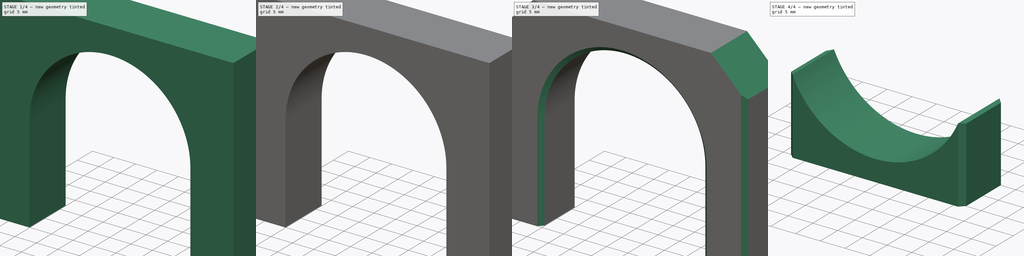
[diagram: build sequence overview — one tinted view per stage of 4, left to right]
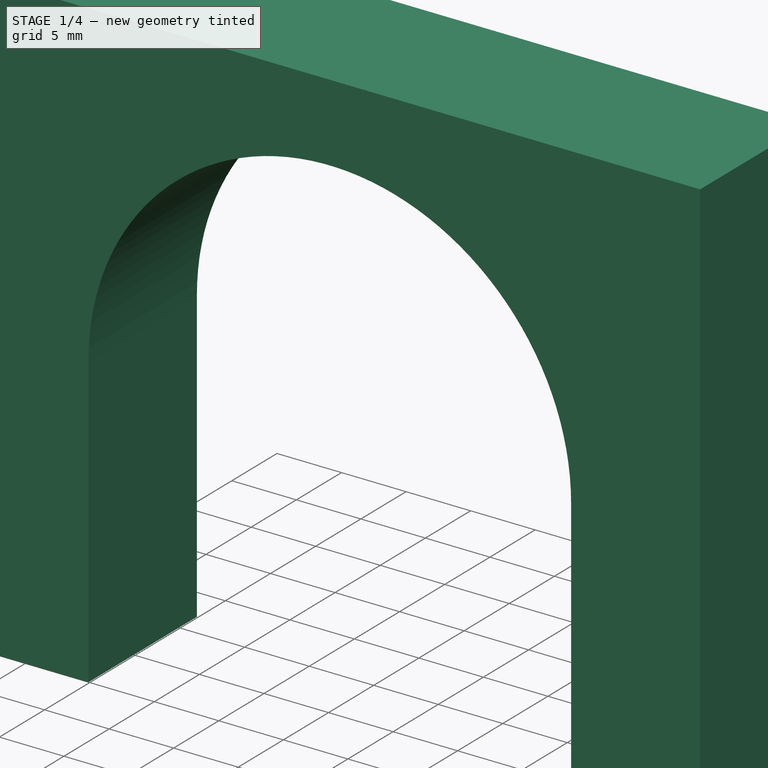
[diagram: stage 1 of 4 — iso view after this stage's code; geometry added in this stage tinted green]
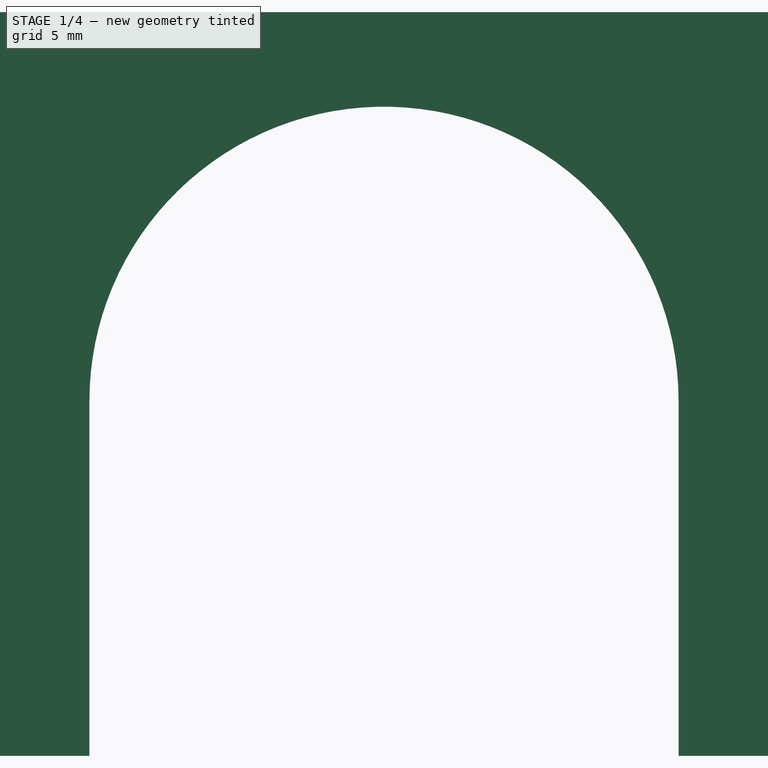
[diagram: stage 1 of 4 — front view after this stage's code; geometry added in this stage tinted green]
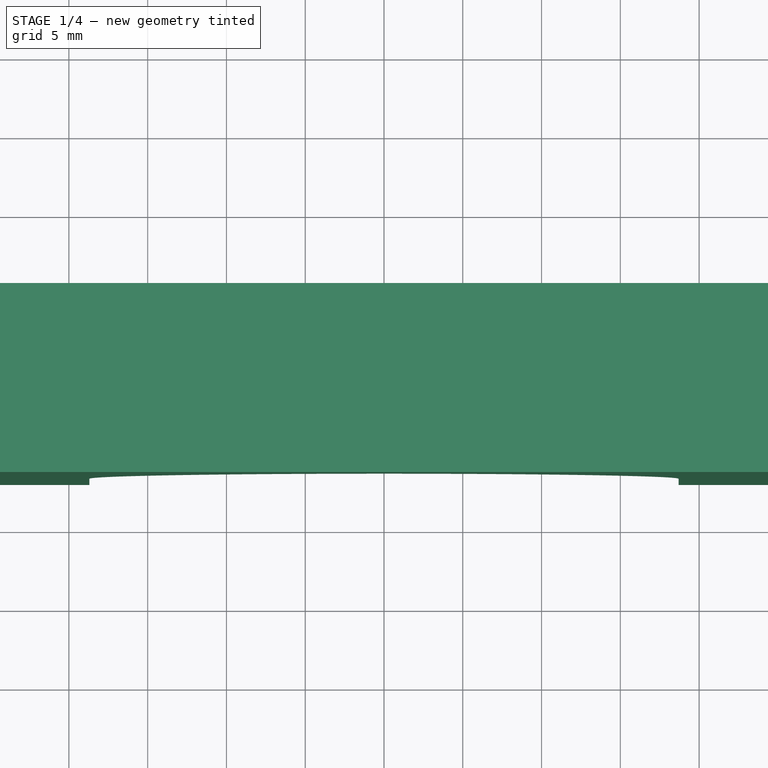
[diagram: stage 1 of 4 — top view after this stage's code; geometry added in this stage tinted green]
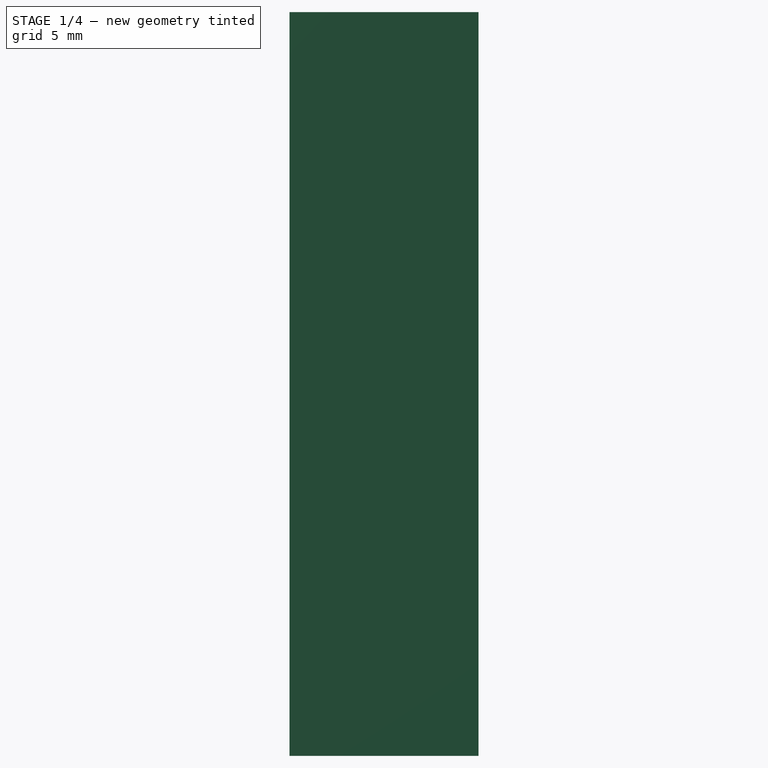
[diagram: stage 1 of 4 — right view after this stage's code; geometry added in this stage tinted green]
FCSTD DOCUMENT  (FreeCAD 0.19R24415 (Git))
Label: KarlssonRobotics_pump_mount
License: All rights reserved
LicenseURL: http://en.wikipedia.org/wiki/All_rights_reserved
objects: PartDesign::Chamfer×6, Sketcher::SketchObject×4, PartDesign::Pad×2, PartDesign::Pocket×2, PartDesign::Mirrored×2, PartDesign::Body×2, PartDesign::ShapeBinder×1
note: 29 computed .brp shape members not serialized (recipe doc carries the construction recipe); baked Part::Feature solids carry a one-line shape summary decoded from their .brp

FEATURE [Sketcher::SketchObject] Sketch
  FullyConstrained = true
  MapMode = 5
  Placement = pos=(0,0,0) rot=(1,0,0;1.5708rad)
  Support = -> [XZ_Plane]
  sketch-geometry (12):
    g0: Circle CenterX=0 CenterY=0 CenterZ=0 NormalX=0 NormalY=0 NormalZ=1 AngleXU=0 Radius=18.5
    g1: ArcOfCircle CenterX=0 CenterY=0 CenterZ=0 NormalX=0 NormalY=0 NormalZ=1 AngleXU=0 Radius=18.7 StartAngle=1e-16 EndAngle=3.14159
    g2: LineSegment StartX=-18.7 StartY=2.846e-13 StartZ=0 EndX=-18.7 EndY=-22.5 EndZ=0
    g3: LineSegment StartX=-18.7 StartY=-22.5 StartZ=0 EndX=-28.7 EndY=-22.5 EndZ=0
    g4: LineSegment StartX=-28.7 StartY=-22.5 StartZ=0 EndX=-28.7 EndY=24.7 EndZ=0
    g5: LineSegment StartX=-28.7 StartY=24.7 StartZ=0 EndX=28.7 EndY=24.7 EndZ=0
    g6: LineSegment StartX=28.7 StartY=24.7 StartZ=0 EndX=28.7 EndY=-22.5 EndZ=0
    g7: LineSegment StartX=28.7 StartY=-22.5 StartZ=0 EndX=18.7 EndY=-22.5 EndZ=0
    g8: LineSegment StartX=18.7 StartY=-22.5 StartZ=0 EndX=18.7 EndY=0 EndZ=0
    g9: LineSegment StartX=-18.7 StartY=-22.5 StartZ=0 EndX=18.7 EndY=-22.5 EndZ=0
    g10: LineSegment StartX=-18.7 StartY=-18.5 StartZ=0 EndX=18.7 EndY=-18.5 EndZ=0
    g11: LineSegment StartX=-28.7 StartY=18.7 StartZ=0 EndX=28.7 EndY=18.7 EndZ=0
  constraints (36):
    c: Coincident(g0,g-1)
    c: Diameter(g0) = 37
    c: Coincident(g1,g-1)
    c: Coincident(g2,g1)
    c: Vertical(g2)
    c: Coincident(g3,g2)
    c: Horizontal(g3)
    c: Coincident(g4,g3)
    c: Vertical(g4)
    c: Coincident(g5,g4)
    c: Horizontal(g5)
    c: Coincident(g6,g5)
    c: Vertical(g6)
    c: Coincident(g7,g6)
    c: Coincident(g8,g7)
    c: Coincident(g8,g1)
    c: Vertical(g8)
    c: Horizontal(g7)
    c: PointOnObject(g1,g-1)
    c: PointOnObject(g1,g-1)
    c: Diameter(g1) = 37.4
    c: Coincident(g9,g2)
    c: Coincident(g9,g7)
    c: Horizontal(g9)
    c: PointOnObject(g10,g2)
    c: PointOnObject(g10,g8)
    c: Horizontal(g10)
    c: Tangent(g10,g0)
    c: DistanceY(g7,g10) = 4
    c: Equal(g3,g7)
    c: DistanceX(g3,g3) = 10
    c: PointOnObject(g11,g4)
    c: PointOnObject(g11,g6)
    c: Horizontal(g11)
    c: Tangent(g11,g1)
    c: DistanceY(g11,g4) = 6
FEATURE [PartDesign::Pad] Pad
  Direction = (1,1,1)
  Length = 12
  Length2 = 100
  Placement = pos=(0,0,0) rot=(1,0,0;1.5708rad)
  Profile = -> Sketch
  Refine = true
  Type = 0
FEATURE [Sketcher::SketchObject] Sketch001
  ExternalGeometry = -> [Pad]
  FullyConstrained = true
  MapMode = 5
  Placement = pos=(0,-1.5e-14,-22.5) rot=(1,0,0;3.14159rad)
  Support = -> [Pad]
  sketch-geometry (3):
    g0: LineSegment StartX=-28.7 StartY=12 StartZ=0 EndX=-18.7 EndY=0 EndZ=0
    g1: LineSegment StartX=-18.7 StartY=12 StartZ=0 EndX=-28.7 EndY=0 EndZ=0
    g2: Circle CenterX=-23.7 CenterY=6 CenterZ=0 NormalX=0 NormalY=0 NormalZ=1 AngleXU=0 Radius=2.55
  constraints (7):
    c: Coincident(g0,g-3)
    c: Coincident(g0,g-4)
    c: Coincident(g1,g-4)
    c: Coincident(g1,g-3)
    c: PointOnObject(g2,g1)
    c: PointOnObject(g2,g0)
    c: Diameter(g2) = 5.1
FEATURE [PartDesign::Pocket] Pocket
  BaseFeature = -> Pad
  Length = 6.4
  Length2 = 100
  Placement = pos=(0,0,0) rot=(1,0,0;1.5708rad)
  Profile = -> Sketch001
  Refine = true
  Type = 0
FEATURE [PartDesign::Mirrored] Mirrored
  BaseFeature = -> Pocket
  MirrorPlane = -> Sketch001 [V_Axis]
  Originals = -> [Pocket]
  Placement = pos=(0,0,0) rot=(1,0,0;1.5708rad)
  Refine = true
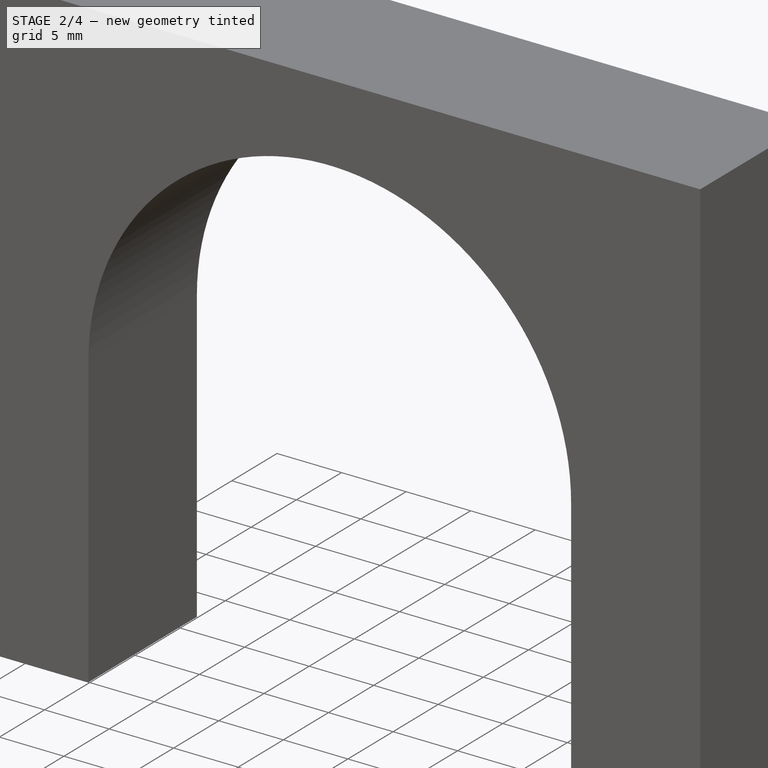
[diagram: stage 2 of 4 — iso view after this stage's code; geometry added in this stage tinted green]
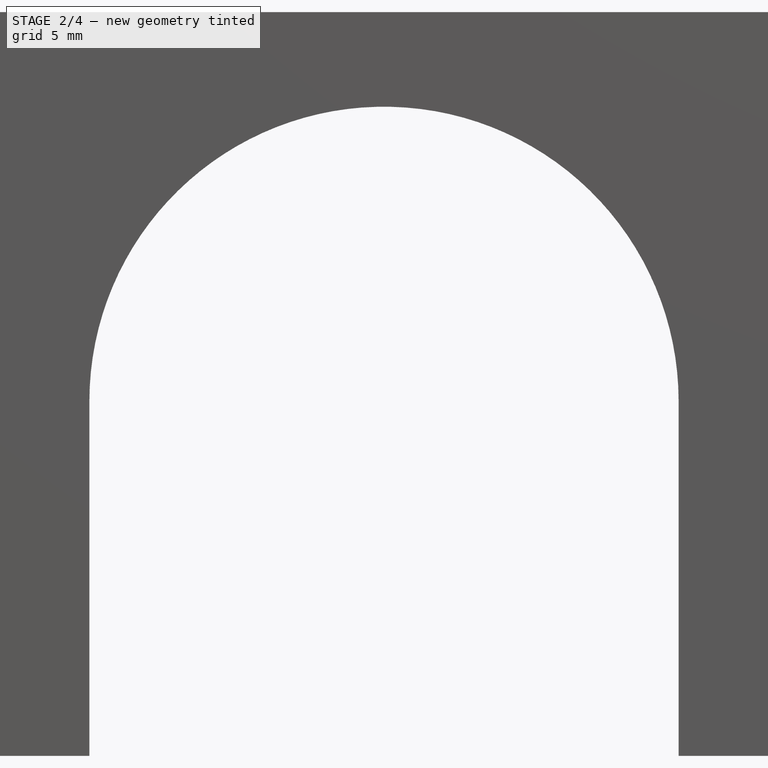
[diagram: stage 2 of 4 — front view after this stage's code; geometry added in this stage tinted green]
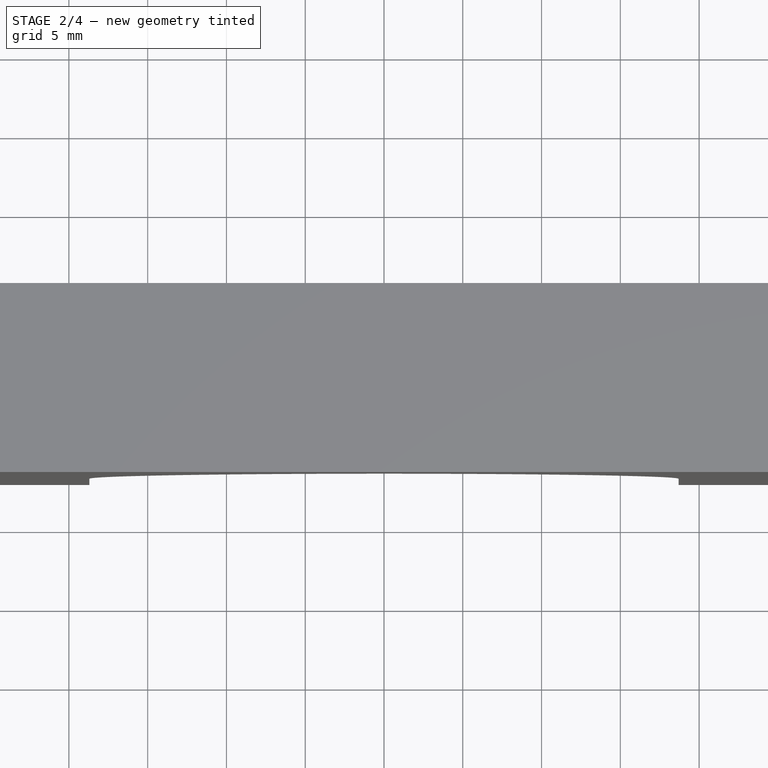
[diagram: stage 2 of 4 — top view after this stage's code; geometry added in this stage tinted green]
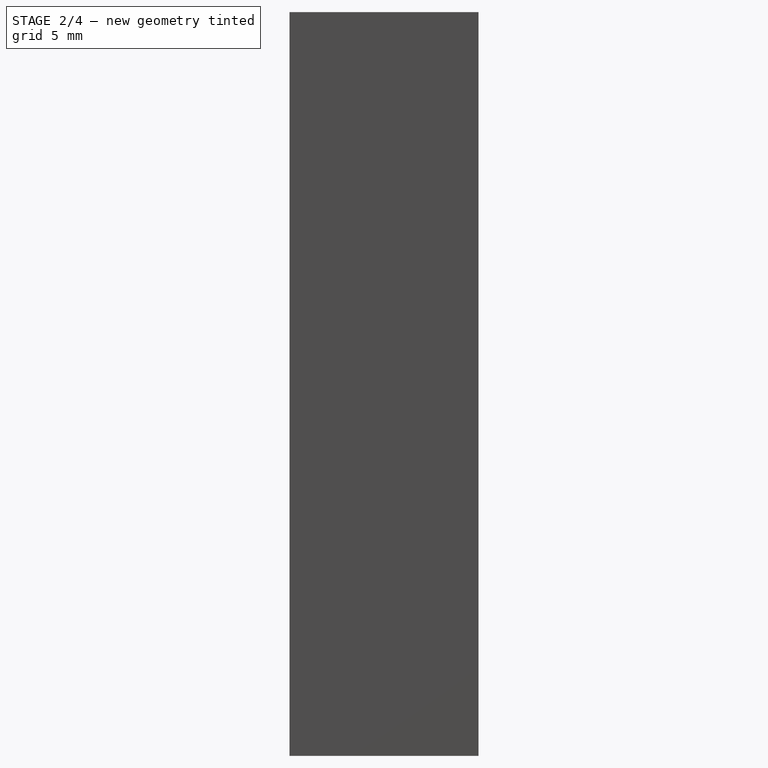
[diagram: stage 2 of 4 — right view after this stage's code; geometry added in this stage tinted green]
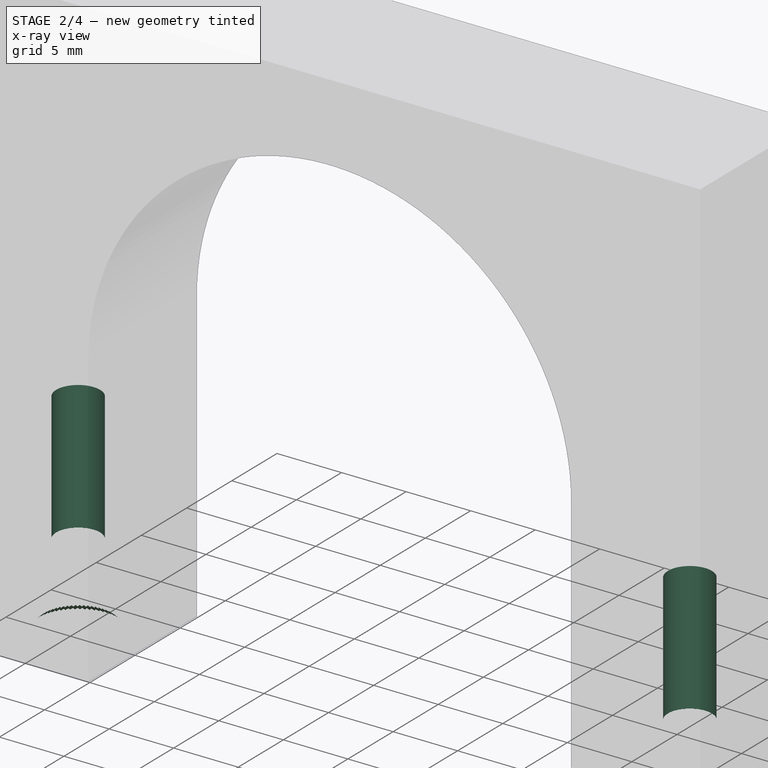
[diagram: stage 2 of 4 — x-ray composite at the iso view; earlier geometry ghosted, this stage's added geometry solid]
FEATURE [Sketcher::SketchObject] Sketch002
  ExternalGeometry = -> [Mirrored]
  FullyConstrained = true
  MapMode = 5
  Placement = pos=(-7.5e-15,-2.01e-14,-16.1) rot=(1,0,0;3.14159rad)
  Support = -> [Mirrored]
  sketch-geometry (1):
    g0: Circle CenterX=-23.7 CenterY=6 CenterZ=0 NormalX=0 NormalY=0 NormalZ=1 AngleXU=0 Radius=1.7
  constraints (2):
    c: Coincident(g0,g-3)
    c: Diameter(g0) = 3.4
FEATURE [PartDesign::Pocket] Pocket001
  BaseFeature = -> Mirrored
  Length = 10
  Length2 = 100
  Placement = pos=(0,0,0) rot=(1,0,0;1.5708rad)
  Profile = -> Sketch002
  Refine = true
  Type = 0
FEATURE [PartDesign::Mirrored] Mirrored001
  BaseFeature = -> Pocket001
  MirrorPlane = -> Sketch002 [V_Axis]
  Originals = -> [Pocket001]
  Placement = pos=(0,0,0) rot=(1,0,0;1.5708rad)
  Refine = true
FEATURE [PartDesign::Chamfer] Chamfer
  Angle = 45
  Base = -> Mirrored001 [Edge24,Edge22]
  BaseFeature = -> Mirrored001
  ChamferType = 0
  FlipDirection = false
  Placement = pos=(0,0,0) rot=(1,0,0;1.5708rad)
  Refine = true
  Size = 0.6
  Size2 = 1
  SupportTransform = false
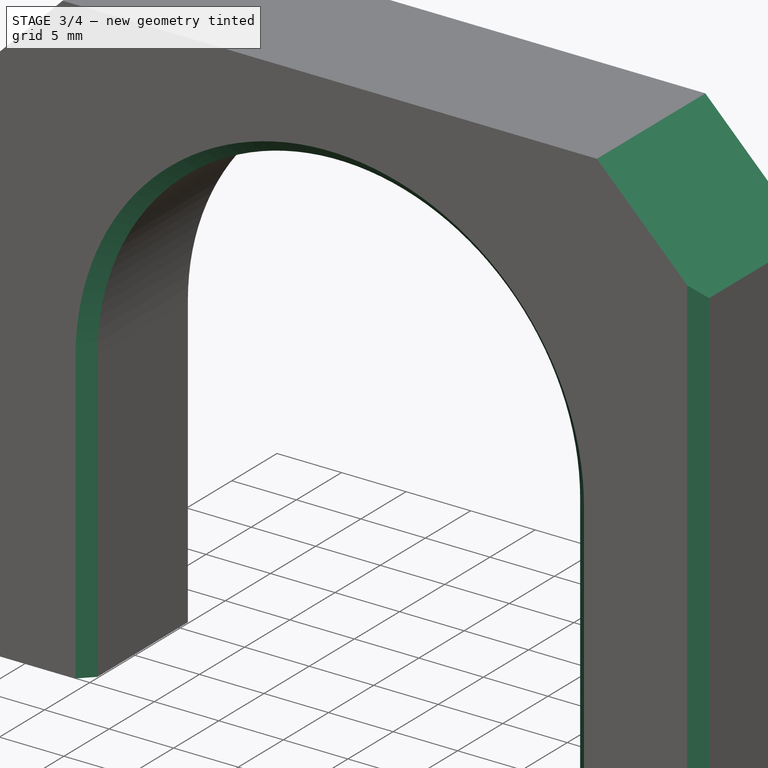
[diagram: stage 3 of 4 — iso view after this stage's code; geometry added in this stage tinted green]
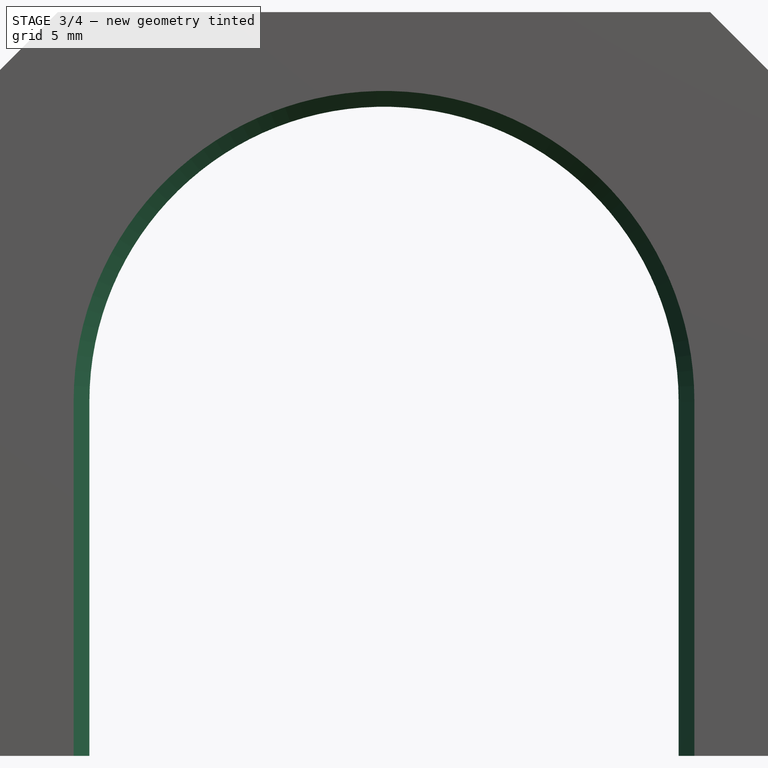
[diagram: stage 3 of 4 — front view after this stage's code; geometry added in this stage tinted green]
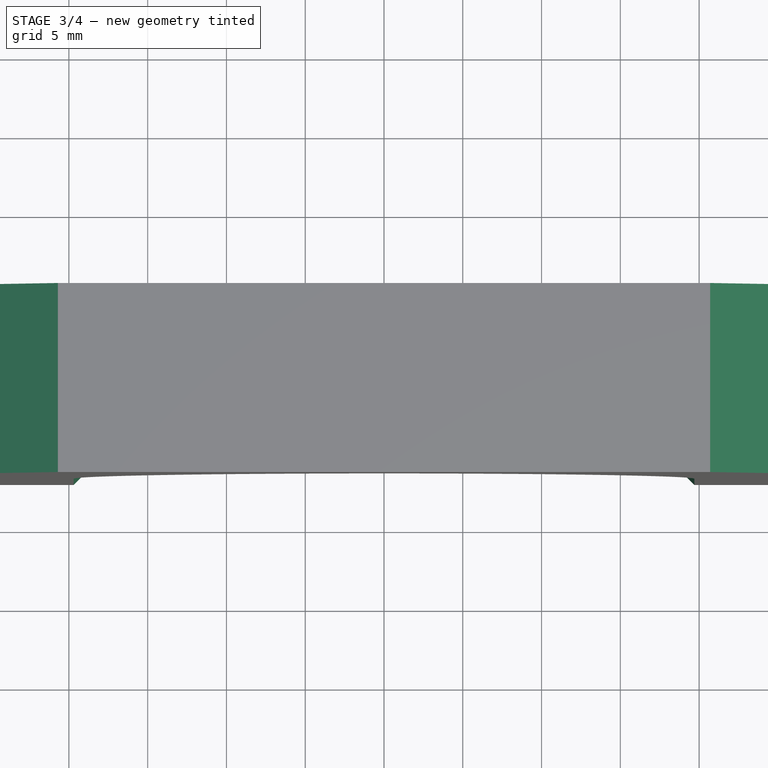
[diagram: stage 3 of 4 — top view after this stage's code; geometry added in this stage tinted green]
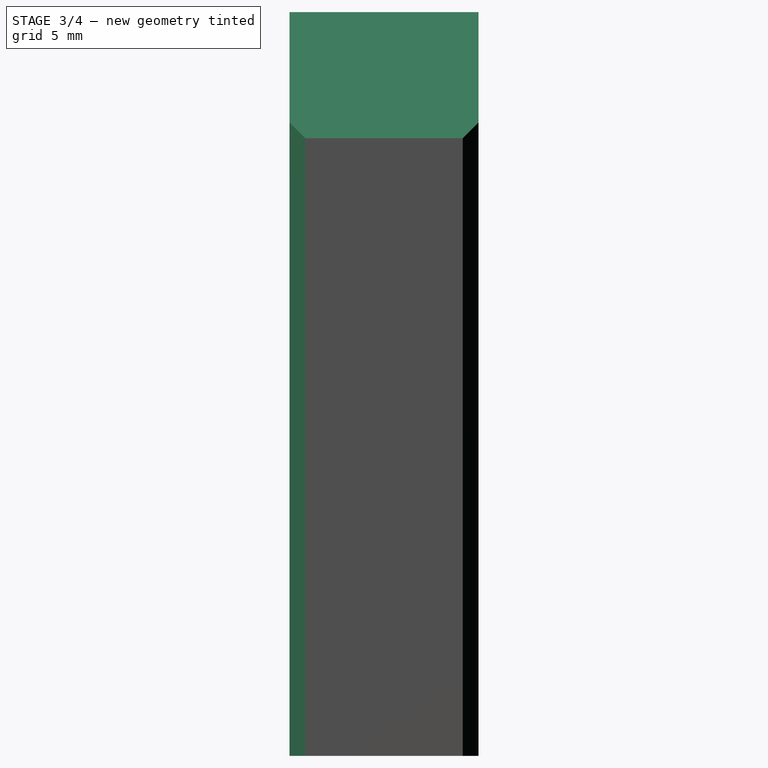
[diagram: stage 3 of 4 — right view after this stage's code; geometry added in this stage tinted green]
FEATURE [PartDesign::Chamfer] Chamfer001
  Angle = 45
  Base = -> Chamfer [Edge26,Edge8]
  BaseFeature = -> Chamfer
  ChamferType = 0
  FlipDirection = false
  Placement = pos=(0,0,0) rot=(1,0,0;1.5708rad)
  Refine = true
  Size = 8
  Size2 = 1
  SupportTransform = false
FEATURE [PartDesign::Chamfer] Chamfer002
  Angle = 45
  Base = -> Chamfer001 [Edge5,Edge19,Edge1,Edge4]
  BaseFeature = -> Chamfer001
  ChamferType = 0
  FlipDirection = false
  Placement = pos=(0,0,0) rot=(1,0,0;1.5708rad)
  Refine = true
  Size = 1
  Size2 = 1
  SupportTransform = false
FEATURE [PartDesign::Chamfer] Chamfer003
  Angle = 45
  Base = -> Chamfer002 [Edge22,Edge23,Edge24,Edge32,Edge31,Edge30]
  BaseFeature = -> Chamfer002
  ChamferType = 0
  FlipDirection = false
  Placement = pos=(0,0,0) rot=(1,0,0;1.5708rad)
  Refine = true
  Size = 1
  Size2 = 1
  SupportTransform = false
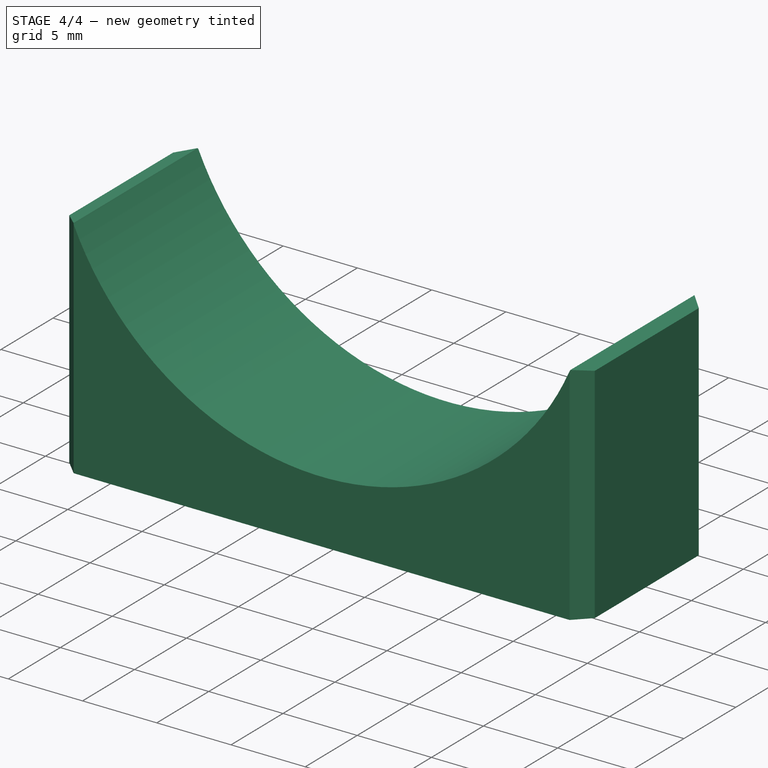
[diagram: stage 4 of 4 — iso view after this stage's code; geometry added in this stage tinted green]
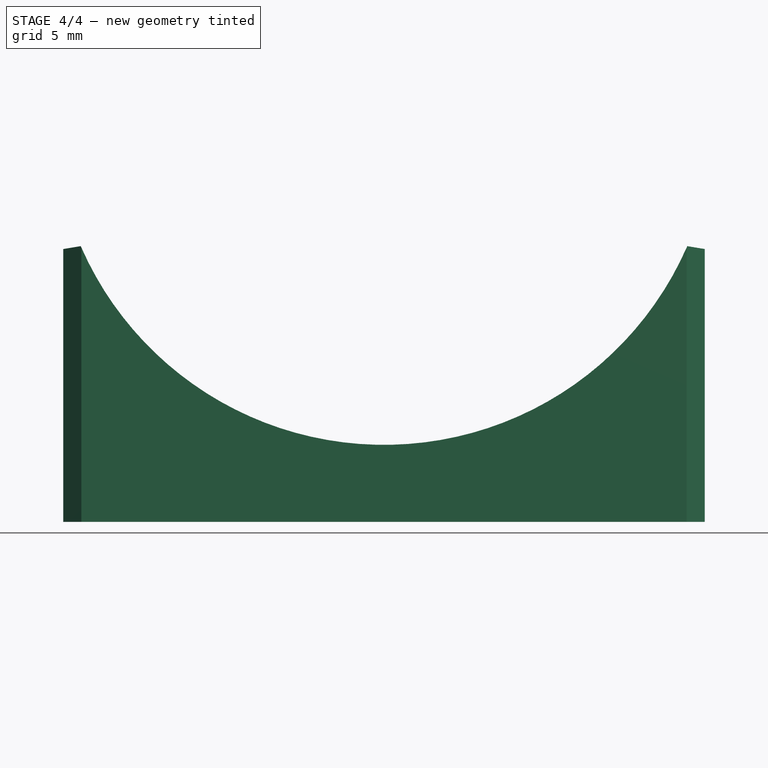
[diagram: stage 4 of 4 — front view after this stage's code; geometry added in this stage tinted green]
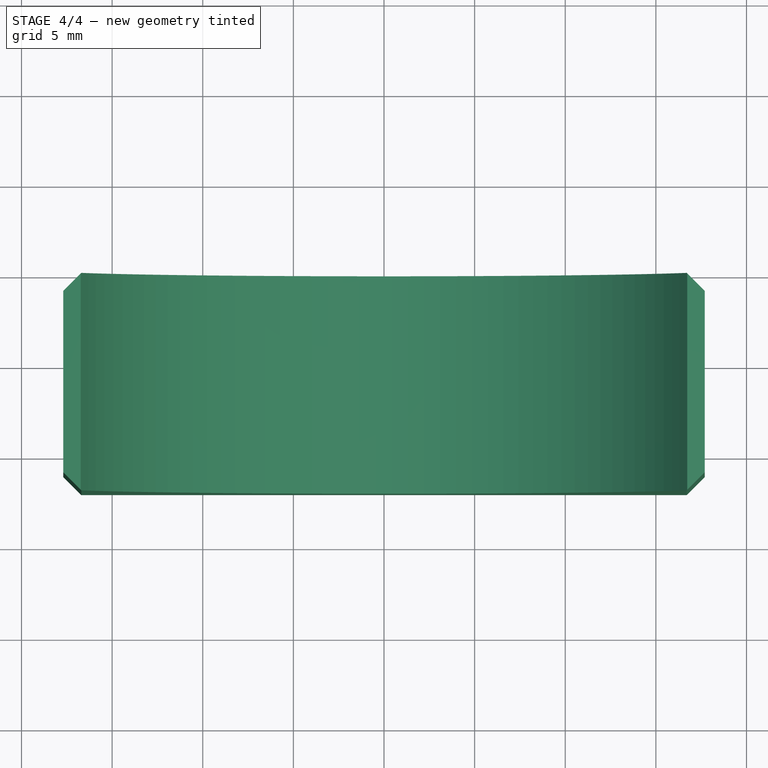
[diagram: stage 4 of 4 — top view after this stage's code; geometry added in this stage tinted green]
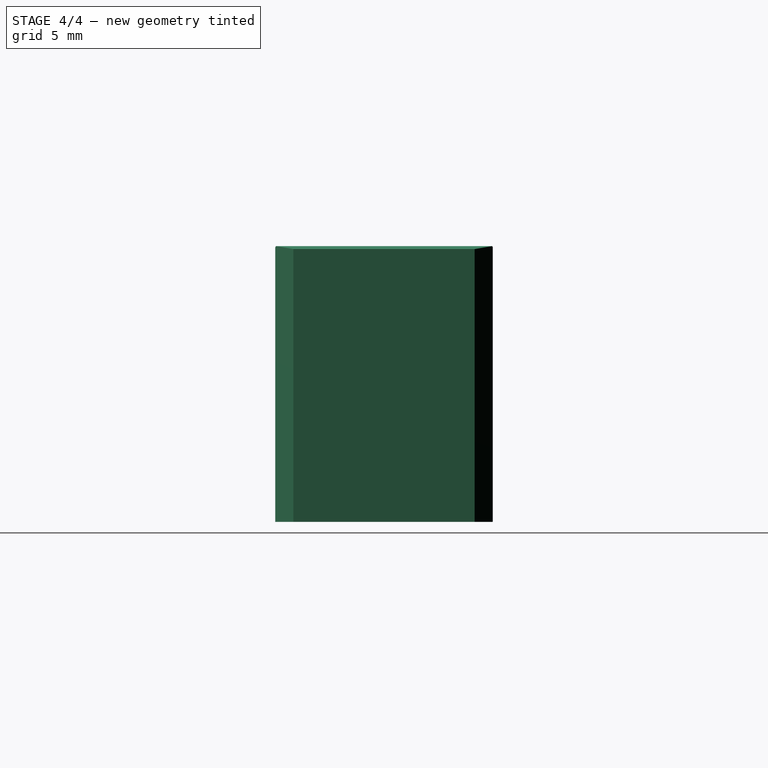
[diagram: stage 4 of 4 — right view after this stage's code; geometry added in this stage tinted green]
FEATURE [PartDesign::Body] Body  label="clamp"
  Group = -> [Sketch,Pad,Sketch001,Pocket,Mirrored,Sketch002,Pocket001,Mirrored001,Chamfer,Chamfer001,Chamfer002,Chamfer003]
  Origin = -> Origin
  Tip = -> Chamfer003
FEATURE [PartDesign::ShapeBinder] ShapeBinder
  Support = -> [Chamfer003]
  TraceSupport = true
FEATURE [Sketcher::SketchObject] Sketch003
  ExternalGeometry = -> [ShapeBinder]
  FullyConstrained = true
  MapMode = 5
  Placement = pos=(0,0,0) rot=(1,0,0;1.5708rad)
  Support = -> [XZ_Plane001]
  sketch-geometry (6):
    g0: Circle CenterX=0 CenterY=0 CenterZ=0 NormalX=0 NormalY=0 NormalZ=1 AngleXU=0 Radius=18.5
    g1: ArcOfCircle CenterX=0 CenterY=0 CenterZ=0 NormalX=0 NormalY=0 NormalZ=1 AngleXU=0 Radius=18.25 StartAngle=3.38772 EndAngle=6.03706
    g2: LineSegment StartX=-17.7 StartY=-4.44663 StartZ=0 EndX=-17.7 EndY=-22.5 EndZ=0
    g3: LineSegment StartX=-17.7 StartY=-22.5 StartZ=0 EndX=17.7 EndY=-22.5 EndZ=0
    g4: LineSegment StartX=17.7 StartY=-22.5 StartZ=0 EndX=17.7 EndY=-4.44663 EndZ=0
    g5: LineSegment StartX=-18.7 StartY=-22.5 StartZ=0 EndX=-17.7 EndY=-22.5 EndZ=0
  constraints (16):
    c: Coincident(g0,g-1)
    c: Diameter(g0) = 37
    c: Coincident(g1,g-1)
    c: Coincident(g2,g1)
    c: Vertical(g2)
    c: Coincident(g3,g2)
    c: Horizontal(g3)
    c: Coincident(g4,g3)
    c: Coincident(g4,g1)
    c: Vertical(g4)
    c: Diameter(g1) = 36.5
    c: Coincident(g5,g-3)
    c: Coincident(g5,g2)
    c: Horizontal(g5)
    c: Equal(g2,g4)
    c: DistanceX(g5,g5) = 1
FEATURE [PartDesign::Pad] Pad001
  Direction = (1,1,1)
  Length = 12
  Length2 = 100
  Placement = pos=(0,0,0) rot=(1,0,0;1.5708rad)
  Profile = -> Sketch003
  Refine = true
  Type = 0
FEATURE [PartDesign::Chamfer] Chamfer004
  Angle = 45
  Base = -> Pad001 [Edge1,Edge2]
  BaseFeature = -> Pad001
  ChamferType = 0
  FlipDirection = false
  Placement = pos=(0,0,0) rot=(1,0,0;1.5708rad)
  Refine = true
  Size = 3
  Size2 = 1
  SupportTransform = false
FEATURE [PartDesign::Chamfer] Chamfer005
  Angle = 45
  Base = -> Chamfer004 [Edge14,Edge7,Edge15,Edge8]
  BaseFeature = -> Chamfer004
  ChamferType = 0
  FlipDirection = false
  Placement = pos=(0,0,0) rot=(1,0,0;1.5708rad)
  Refine = true
  Size = 1
  Size2 = 1
  SupportTransform = false
FEATURE [PartDesign::Body] Body001  label="base"
  Group = -> [ShapeBinder,Sketch003,Pad001,Chamfer004,Chamfer005]
  Origin = -> Origin001
  Tip = -> Chamfer005
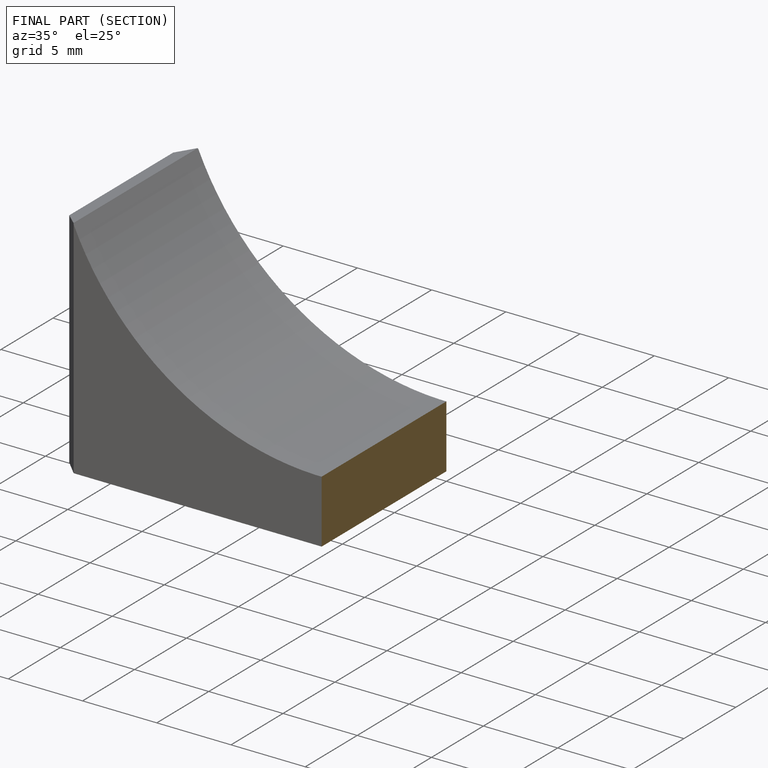
[diagram: finished part — half-section view (interior)]
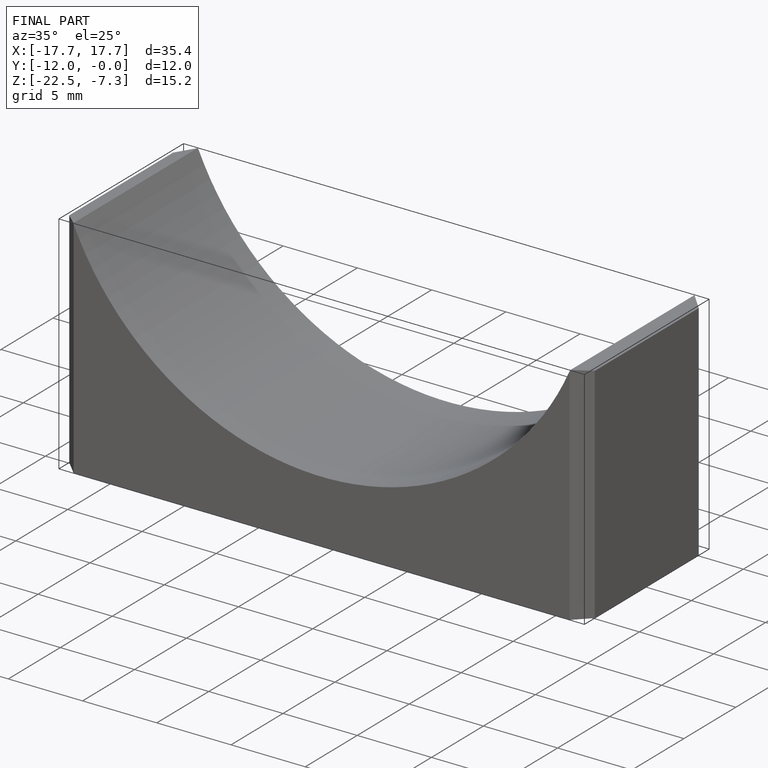
[diagram: finished part — iso view with bounding-box wireframe]
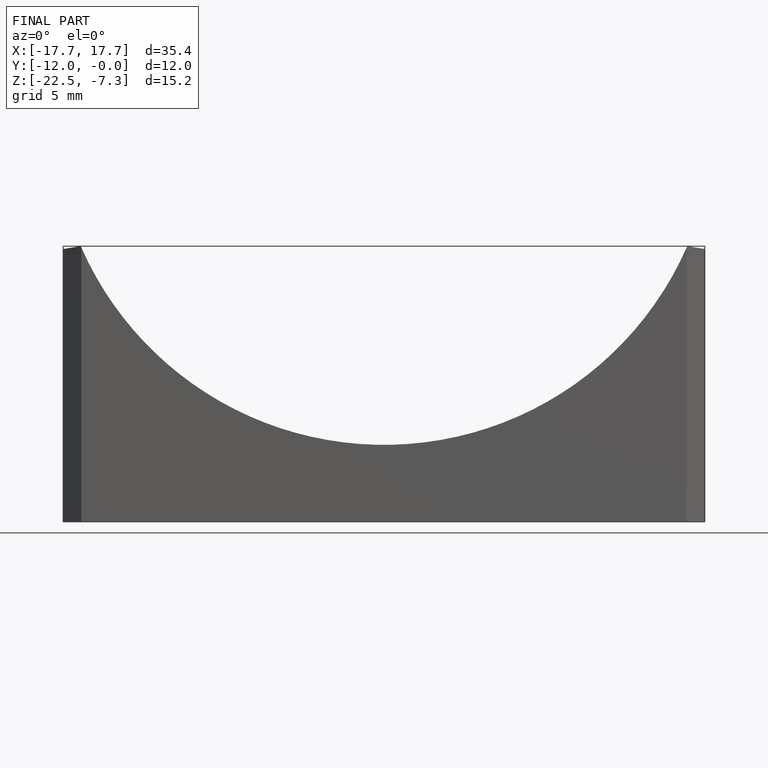
[diagram: finished part — front view with bounding-box wireframe]
